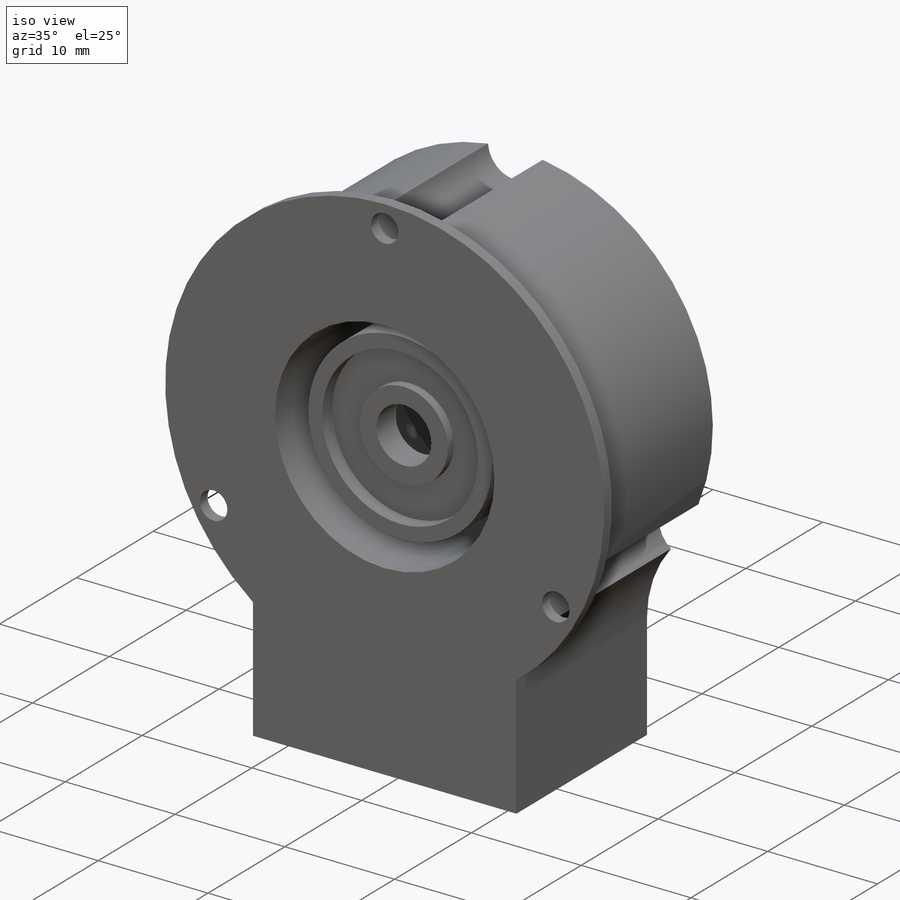
[diagram: iso view]
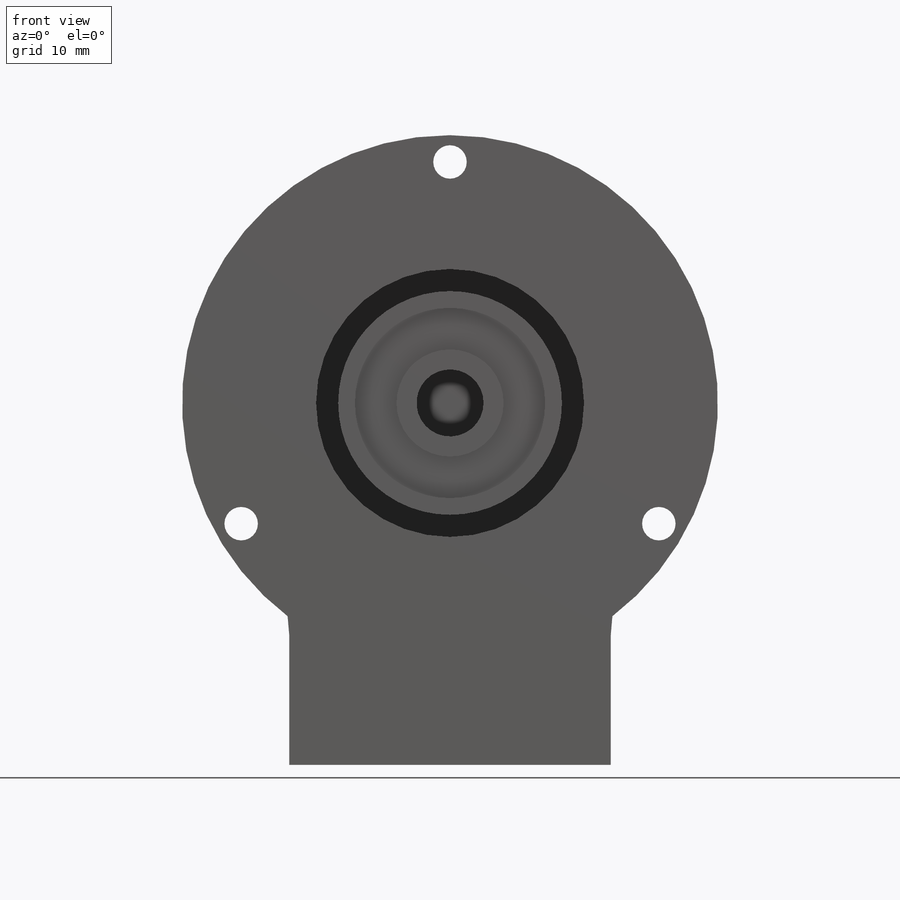
[diagram: front view]
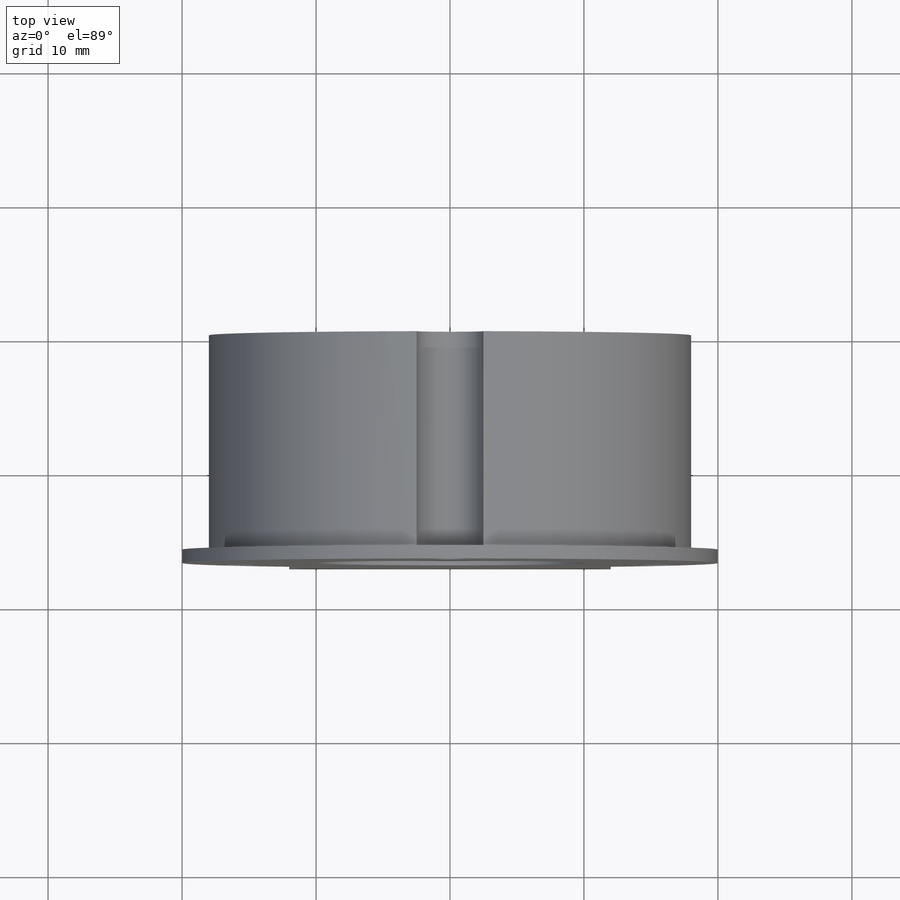
[diagram: top view]
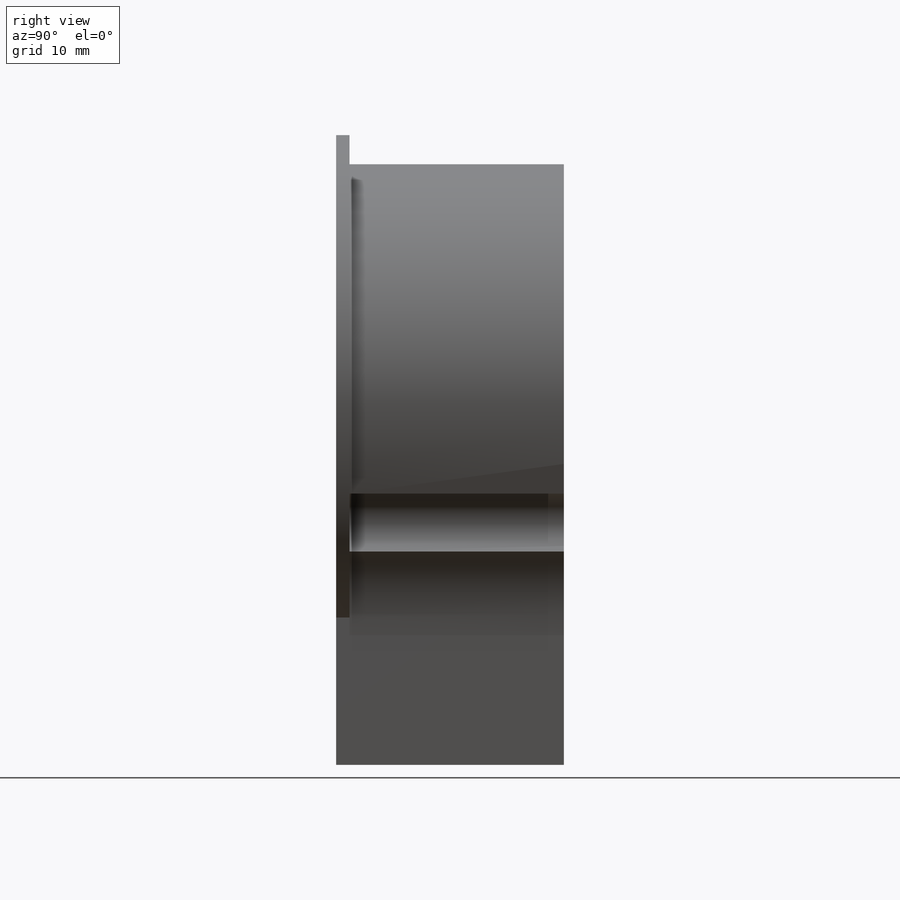
[diagram: right view]
SOLIDWORKS PART (.sldprt)
format: sldprt  version: not decoded by parser v0  size: 283,648 bytes
history: native  units: mm
features: sketch x6, extrude x2, material x1, hole x1, cut_extrude x1, revolve x1 (+11 scaffold rows collapsed)
feature tree (23):
  scaffold x11  (default folders/planes/origin — collapsed)
  material  "Material <not specified>"
  sketch  "Sketch1"  dims[c1.D2=18.0mm c1.D4=10.0mm c1.D1=24.0mm c1.D3=27.0mm c2.D4=~40.313029mm]
  extrude  "Extrude1"  Depth=16mm
  sketch  "Sketch2"  dims[D1=20.0mm]
  extrude  "Extrude2"  Depth=1mm
  hole  "CBORE for M2.5 SHCS1"  Diameter=2.5mm Depth=17mm
  sketch  "Sketch5"  dims[D1=18.0mm D2=27.0mm]
  sketch  "Sketch4"  dims[hole-wizard template sketch: 41 standard entries collapsed; hole parameters kept: c12.Thru Hole Dia.=2.5mm c12.Thru Hole Depth=17.0mm c12.C'Bore Dia.=5.0mm c12.C'Bore Depth=16.0mm]
  sketch  "Sketch6"  dims[D1=20.0mm]
  cut_extrude  "Cut-Extrude1"  Depth=2mm
  sketch  "Sketch7"  dims[D1=2.5mm D2=7.0mm D3=1.0mm D4=8.35mm D5=1.25mm D6=1.5mm D7=0.5mm D8=1.3mm D9=4.0mm D10=2.0mm]
  revolve  "Revolve1"  Angle=360deg
decode coverage: 11 of 11 modeling features carry decoded parameters
note: ~ marks probable driven/reference dimensions
note: suppression state not decoded; provenance and decode notes live in map.json
